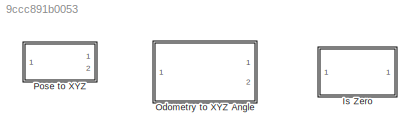
MODEL slx_9ccc891b0053
KIND library
CONFIG AbsTol = auto
CONFIG EnableMultiTasking = off
CONFIG FixedStep = auto
CONFIG MaxStep = auto
CONFIG MinStep = auto
CONFIG RelTol = 1e-3
CONFIG SampleTimeConstraint = Unconstrained
CONFIG Solver = VariableStepAuto
CONFIG SolverName = VariableStepAuto
CONFIG StartTime = 0.0
CONFIG StopTime = 10.0
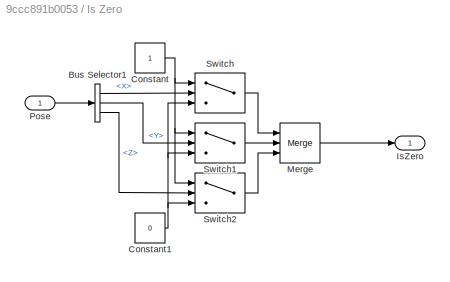
BLOCK [SubSystem] Is Zero
  Ports = [1, 1]
  RequestExecContextInheritance = off
  Variant = off
BLOCK [BusSelector] Is Zero/Bus Selector1
  OutputAsBus = off
  OutputSignals = Position.X,Position.Y,Position.Z
  Ports = [1, 3]
BLOCK [Constant] Is Zero/Constant
BLOCK [Constant] Is Zero/Constant1
  Value = 0
BLOCK [Outport] Is Zero/IsZero
  IconDisplay = Port number
BLOCK [Merge] Is Zero/Merge
  Inputs = 3
  Ports = [3, 1]
BLOCK [Inport] Is Zero/Pose
  IconDisplay = Port number
BLOCK [Switch] Is Zero/Switch
  Criteria = u2 ~= 0
  InputSameDT = off
  SaturateOnIntegerOverflow = off
BLOCK [Switch] Is Zero/Switch1
  Criteria = u2 ~= 0
  InputSameDT = off
  SaturateOnIntegerOverflow = off
BLOCK [Switch] Is Zero/Switch2
  Criteria = u2 ~= 0
  InputSameDT = off
  SaturateOnIntegerOverflow = off
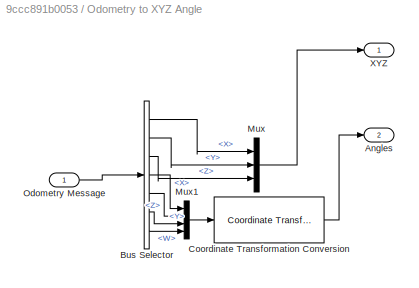
BLOCK [SubSystem] Odometry to XYZ Angle
  Ports = [1, 2]
  RequestExecContextInheritance = off
  Variant = off
BLOCK [Outport] Odometry to XYZ Angle/Angles
  IconDisplay = Port number
  Port = 2
BLOCK [BusSelector] Odometry to XYZ Angle/Bus Selector
  OutputAsBus = off
  OutputSignals = Pose.Pose.Position.X,Pose.Pose.Position.Y,Pose.Pose.Position.Z,Pose.Pose.Orientation.X,Pose.Pose.Orientation.Z,Pose.Pose.Orientation.Y,Pose.Pose.Orientation.W
  Ports = [1, 7]
BLOCK [Reference] Odometry to XYZ Angle/Coordinate Transformation Conversion  REF=robotcorelib/Coordinate Transformation Conversion
  Ports = [1, 1]
  SourceBlock = robotcorelib/Coordinate Transformation Conversion
  SourceProductBaseCode = RO
  SourceProductName = Robotics System Toolbox
  SourceType = robotics.slcore.internal.block.CoordinateTransformationConversion
BLOCK [Mux] Odometry to XYZ Angle/Mux
  DisplayOption = bar
  Inputs = 3
  Ports = [3, 1]
BLOCK [Mux] Odometry to XYZ Angle/Mux1
  DisplayOption = bar
  Ports = [4, 1]
BLOCK [Inport] Odometry to XYZ Angle/Odometry Message
  IconDisplay = Port number
BLOCK [Outport] Odometry to XYZ Angle/XYZ
  IconDisplay = Port number
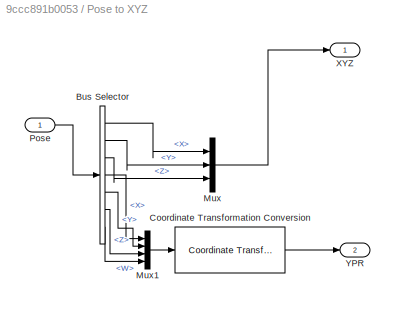
BLOCK [SubSystem] Pose to XYZ
  Ports = [1, 2]
  RequestExecContextInheritance = off
  Variant = off
BLOCK [BusSelector] Pose to XYZ/Bus Selector
  OutputAsBus = off
  OutputSignals = Position.X,Position.Y,Position.Z,Orientation.X,Orientation.Y,Orientation.Z,Orientation.W
  Ports = [1, 7]
BLOCK [Reference] Pose to XYZ/Coordinate Transformation Conversion  REF=robotcorelib/Coordinate Transformation Conversion
  Ports = [1, 1]
  SourceBlock = robotcorelib/Coordinate Transformation Conversion
  SourceProductBaseCode = RO
  SourceProductName = Robotics System Toolbox
  SourceType = robotics.slcore.internal.block.CoordinateTransformationConversion
BLOCK [Mux] Pose to XYZ/Mux
  DisplayOption = bar
  Inputs = 3
  Ports = [3, 1]
BLOCK [Mux] Pose to XYZ/Mux1
  DisplayOption = bar
  Ports = [4, 1]
BLOCK [Inport] Pose to XYZ/Pose
  IconDisplay = Port number
BLOCK [Outport] Pose to XYZ/XYZ
  IconDisplay = Port number
BLOCK [Outport] Pose to XYZ/YPR
  IconDisplay = Port number
  Port = 2
LINE Is Zero/Bus Selector1:1 -> Is Zero/Switch:2
LINE Is Zero/Bus Selector1:2 -> Is Zero/Switch1:2
LINE Is Zero/Bus Selector1:3 -> Is Zero/Switch2:2
NET Is Zero/Constant1:1 -> Is Zero/Switch1:3, Is Zero/Switch2:3, Is Zero/Switch:3
NET Is Zero/Constant:1 -> Is Zero/Switch1:1, Is Zero/Switch2:1, Is Zero/Switch:1
LINE Is Zero/Merge:1 -> Is Zero/IsZero:1
LINE Is Zero/Pose:1 -> Is Zero/Bus Selector1:1
LINE Is Zero/Switch1:1 -> Is Zero/Merge:2
LINE Is Zero/Switch2:1 -> Is Zero/Merge:3
LINE Is Zero/Switch:1 -> Is Zero/Merge:1
LINE Odometry to XYZ Angle/Bus Selector:1 -> Odometry to XYZ Angle/Mux:1
LINE Odometry to XYZ Angle/Bus Selector:2 -> Odometry to XYZ Angle/Mux:2
LINE Odometry to XYZ Angle/Bus Selector:3 -> Odometry to XYZ Angle/Mux:3
LINE Odometry to XYZ Angle/Bus Selector:4 -> Odometry to XYZ Angle/Mux1:1
LINE Odometry to XYZ Angle/Bus Selector:5 -> Odometry to XYZ Angle/Mux1:2
LINE Odometry to XYZ Angle/Bus Selector:6 -> Odometry to XYZ Angle/Mux1:3
LINE Odometry to XYZ Angle/Bus Selector:7 -> Odometry to XYZ Angle/Mux1:4
LINE Odometry to XYZ Angle/Coordinate Transformation Conversion:1 -> Odometry to XYZ Angle/Angles:1
LINE Odometry to XYZ Angle/Mux1:1 -> Odometry to XYZ Angle/Coordinate Transformation Conversion:1
LINE Odometry to XYZ Angle/Mux:1 -> Odometry to XYZ Angle/XYZ:1
LINE Odometry to XYZ Angle/Odometry Message:1 -> Odometry to XYZ Angle/Bus Selector:1
LINE Pose to XYZ/Bus Selector:1 -> Pose to XYZ/Mux:1
LINE Pose to XYZ/Bus Selector:2 -> Pose to XYZ/Mux:2
LINE Pose to XYZ/Bus Selector:3 -> Pose to XYZ/Mux:3
LINE Pose to XYZ/Bus Selector:4 -> Pose to XYZ/Mux1:1
LINE Pose to XYZ/Bus Selector:5 -> Pose to XYZ/Mux1:2
LINE Pose to XYZ/Bus Selector:6 -> Pose to XYZ/Mux1:3
LINE Pose to XYZ/Bus Selector:7 -> Pose to XYZ/Mux1:4
LINE Pose to XYZ/Coordinate Transformation Conversion:1 -> Pose to XYZ/YPR:1
LINE Pose to XYZ/Mux1:1 -> Pose to XYZ/Coordinate Transformation Conversion:1
LINE Pose to XYZ/Mux:1 -> Pose to XYZ/XYZ:1
LINE Pose to XYZ/Pose:1 -> Pose to XYZ/Bus Selector:1
note: NET lines group one-source signal fan-out (src -> all destinations, sorted); 1:1 wires keep LINE
